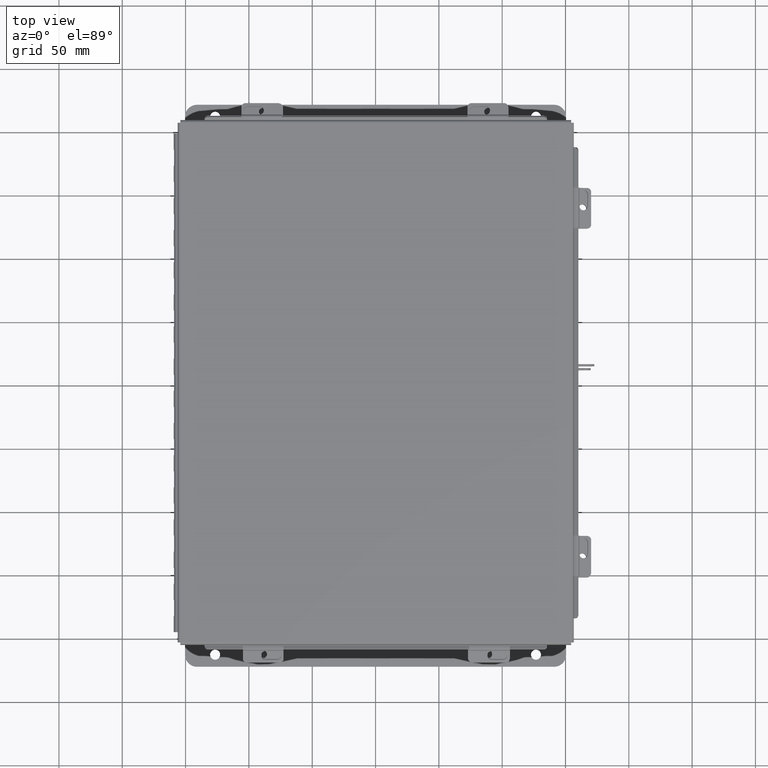
[diagram: clean part render]
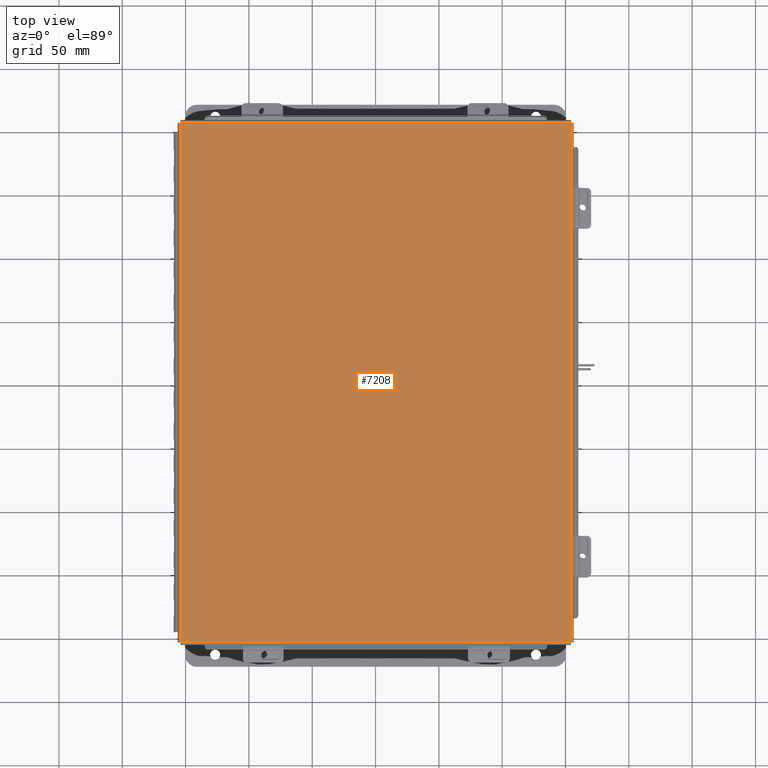
[diagram: same view with one face highlighted and labeled with its STEP entity id]
A machine part, top view. The second image highlights one B-rep face of the part: STEP entity #7208.
In plain terms, the highlighted planar face has unit normal (-0, -0, 1).
Its self-contained STEP definition (entity closure, byte-faithful):
#64 = VERTEX_POINT ( 'NONE', #1824 ) ;
#1824 = CARTESIAN_POINT ( 'NONE',  ( 6.068550000000017000, -8.068550000000000100, -0.07469999999999142600 ) ) ;
#1851 = LINE ( 'NONE', #9740, #18395 ) ;
#2161 = CARTESIAN_POINT ( 'NONE',  ( 6.074478932188154300, -8.068550000000000100, -0.07470000000000015500 ) ) ;
#2826 = LINE ( 'NONE', #13886, #19822 ) ;
#3037 = DIRECTION ( 'NONE',  ( 3.347226646114128200E-030, 1.000000000000000000, 8.208677865579519900E-017 ) ) ;
#4052 = VECTOR ( 'NONE', #8390, 39.37007874015748100 ) ;
#4167 = ORIENTED_EDGE ( 'NONE', *, *, #19473, .T. ) ;
#4420 = VERTEX_POINT ( 'NONE', #17357 ) ;
#7161 = VECTOR ( 'NONE', #9497, 39.37007874015748100 ) ;
#7174 = DIRECTION ( 'NONE',  ( 5.938065620492508100E-059, -1.846427556282924300E-029, -1.000000000000000000 ) ) ;
#7208 = ADVANCED_FACE ( 'NONE', ( #15870 ), #13356, .T. ) ;
#8164 = LINE ( 'NONE', #2161, #4052 ) ;
#8348 = AXIS2_PLACEMENT_3D ( 'NONE', #8576, #7174, #18046 ) ;
#8390 = DIRECTION ( 'NONE',  ( -1.000000000000000000, -3.215975411700707400E-030, -0.0000000000000000000 ) ) ;
#8576 = CARTESIAN_POINT ( 'NONE',  ( 0.0000000000000000000, 0.0000000000000000000, -0.07470000000000015500 ) ) ;
#9497 = DIRECTION ( 'NONE',  ( 1.000000000000000000, 3.215975411700707400E-030, -0.0000000000000000000 ) ) ;
#9602 = CARTESIAN_POINT ( 'NONE',  ( -6.068550000000017000, -8.068550000000000100, -0.07470000000000125200 ) ) ;
#9740 = CARTESIAN_POINT ( 'NONE',  ( 6.068550000000017000, 8.074478932188135600, -0.07470000000000015500 ) ) ;
#10427 = CARTESIAN_POINT ( 'NONE',  ( -6.068550000000017000, 8.068550000000000100, -0.07469999999999907300 ) ) ;
#11270 = LINE ( 'NONE', #15705, #7161 ) ;
#11945 = VERTEX_POINT ( 'NONE', #9602 ) ;
#12892 = DIRECTION ( 'NONE',  ( -3.166671605124525800E-030, -1.000000000000000000, -1.853823127269377700E-029 ) ) ;
#13356 = PLANE ( 'NONE',  #8348 ) ;
#13886 = CARTESIAN_POINT ( 'NONE',  ( -6.068550000000017000, -8.074478932188135600, -0.07470000000000125200 ) ) ;
#14062 = VERTEX_POINT ( 'NONE', #10427 ) ;
#14754 = ORIENTED_EDGE ( 'NONE', *, *, #19934, .T. ) ;
#15046 = EDGE_LOOP ( 'NONE', ( #19647, #4167, #19160, #14754 ) ) ;
#15705 = CARTESIAN_POINT ( 'NONE',  ( -6.074478932188154300, 8.068550000000000100, -0.07469999999999907300 ) ) ;
#15870 = FACE_OUTER_BOUND ( 'NONE', #15046, .T. ) ;
#17357 = CARTESIAN_POINT ( 'NONE',  ( 6.068550000000017000, 8.068550000000000100, -0.07470000000000015500 ) ) ;
#18046 = DIRECTION ( 'NONE',  ( -1.000000000000000000, -3.215975411700707400E-030, 0.0000000000000000000 ) ) ;
#18395 = VECTOR ( 'NONE', #12892, 39.37007874015748100 ) ;
#18702 = EDGE_CURVE ( 'NONE', #14062, #4420, #11270, .T. ) ;
#19160 = ORIENTED_EDGE ( 'NONE', *, *, #19560, .T. ) ;
#19473 = EDGE_CURVE ( 'NONE', #4420, #64, #1851, .T. ) ;
#19560 = EDGE_CURVE ( 'NONE', #64, #11945, #8164, .T. ) ;
#19647 = ORIENTED_EDGE ( 'NONE', *, *, #18702, .T. ) ;
#19822 = VECTOR ( 'NONE', #3037, 39.37007874015748100 ) ;
#19934 = EDGE_CURVE ( 'NONE', #11945, #14062, #2826, .T. ) ;